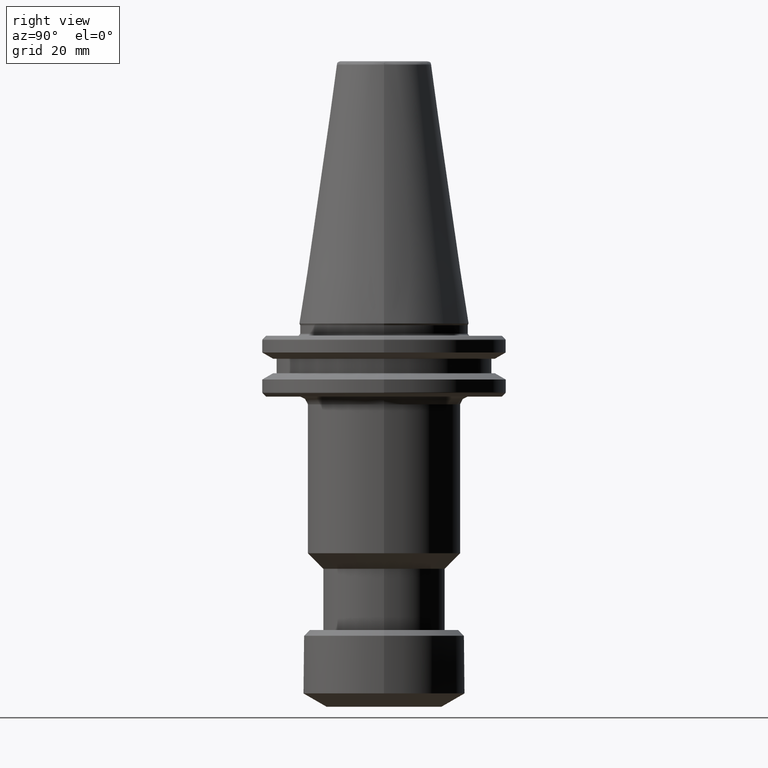
[diagram: clean part render]
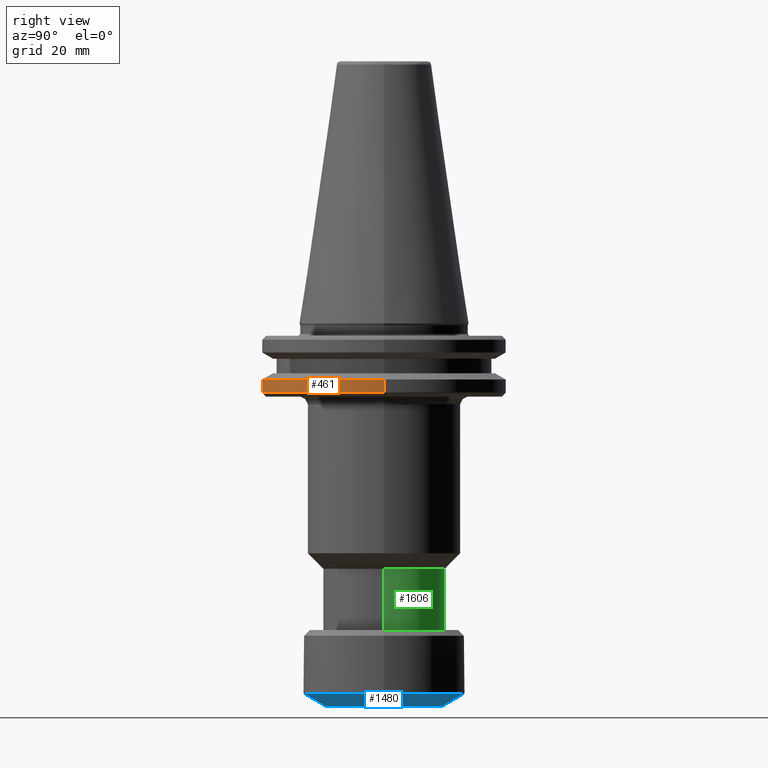
[diagram: same view with three faces highlighted in distinct colors, each labeled with its STEP entity id]
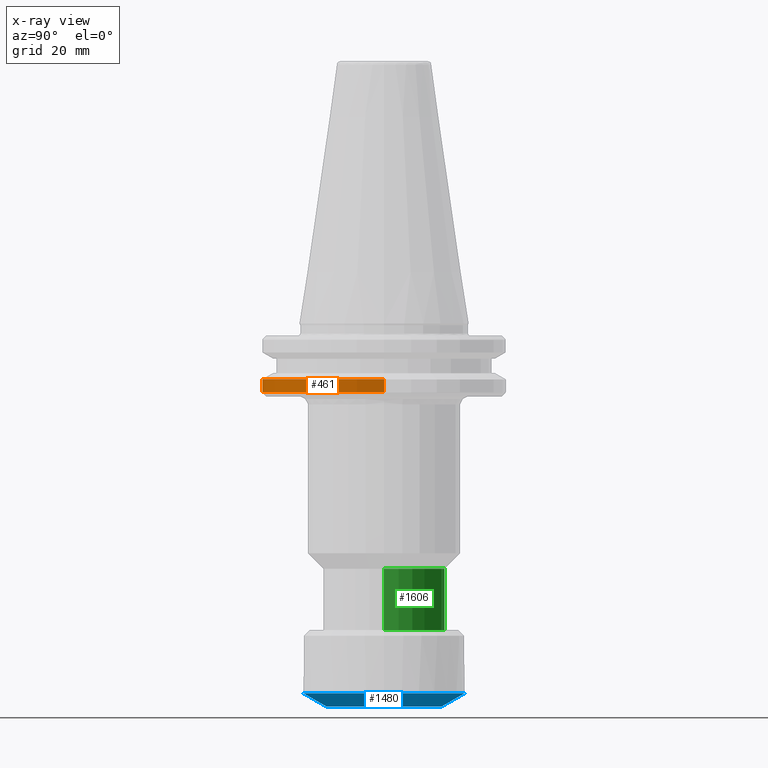
[diagram: x-ray of the same camera — body ghosted, the three highlighted faces saturated]
A machine part, right view with three faces highlighted in distinct colors.
The next image is the same camera in x-ray (body ghosted, the three faces saturated) — at least one of them is partly hidden behind the body in this view.
Their STEP definitions:

[orange] entity #461 — the highlighted conical surface has half-angle 0.001 deg.
#14 = VERTEX_POINT ( 'NONE', #438 ) ;
#16 = CIRCLE ( 'NONE', #235, 31.75222334815384800 ) ;
#55 = CIRCLE ( 'NONE', #1088, 31.75228813968557200 ) ;
#128 = VECTOR ( 'NONE', #274, 1000.000000000000000 ) ;
#214 = VERTEX_POINT ( 'NONE', #1546 ) ;
#235 = AXIS2_PLACEMENT_3D ( 'NONE', #1138, #382, #1272 ) ;
#256 = VERTEX_POINT ( 'NONE', #281 ) ;
#274 = DIRECTION ( 'NONE',  ( -1.955642939386508000E-005, 0.0000000000000000000, -0.9999999998087730800 ) ) ;
#275 = FACE_OUTER_BOUND ( 'NONE', #902, .T. ) ;
#281 = CARTESIAN_POINT ( 'NONE',  ( -31.75222334815384800, 0.0000000000000000000, -14.62063833440296900 ) ) ;
#338 = DIRECTION ( 'NONE',  ( 1.955642939386508000E-005, 2.394971865994808200E-021, -0.9999999998087730800 ) ) ;
#350 = VERTEX_POINT ( 'NONE', #878 ) ;
#382 = DIRECTION ( 'NONE',  ( -0.0000000000000000000, -0.0000000000000000000, 1.000000000000000000 ) ) ;
#438 = CARTESIAN_POINT ( 'NONE',  ( 31.75228813968557200, 3.888533803587039900E-015, -17.93369361693086700 ) ) ;
#461 = ADVANCED_FACE ( 'NONE', ( #275 ), #933, .T. ) ;
#474 = LINE ( 'NONE', #1403, #128 ) ;
#513 = DIRECTION ( 'NONE',  ( 1.000000000000000000, 0.0000000000000000000, 0.0000000000000000000 ) ) ;
#515 = EDGE_CURVE ( 'NONE', #214, #14, #978, .T. ) ;
#517 = ORIENTED_EDGE ( 'NONE', *, *, #769, .F. ) ;
#769 = EDGE_CURVE ( 'NONE', #256, #214, #16, .T. ) ;
#869 = CARTESIAN_POINT ( 'NONE',  ( 0.0000000000000000000, 0.0000000000000000000, -17.93369361693086700 ) ) ;
#878 = CARTESIAN_POINT ( 'NONE',  ( -31.75228813968557200, 0.0000000000000000000, -17.93369361693086700 ) ) ;
#902 = EDGE_LOOP ( 'NONE', ( #918, #517, #1588, #1069 ) ) ;
#918 = ORIENTED_EDGE ( 'NONE', *, *, #515, .F. ) ;
#933 = CONICAL_SURFACE ( 'NONE', #1238, 31.75222334815384800, 1.955642939511165100E-005 ) ;
#978 = LINE ( 'NONE', #1499, #1571 ) ;
#1069 = ORIENTED_EDGE ( 'NONE', *, *, #1282, .T. ) ;
#1088 = AXIS2_PLACEMENT_3D ( 'NONE', #869, #1617, #513 ) ;
#1114 = CARTESIAN_POINT ( 'NONE',  ( 0.0000000000000000000, 0.0000000000000000000, -14.62063833440296900 ) ) ;
#1138 = CARTESIAN_POINT ( 'NONE',  ( 0.0000000000000000000, 0.0000000000000000000, -14.62063833440296900 ) ) ;
#1238 = AXIS2_PLACEMENT_3D ( 'NONE', #1114, #1614, #1489 ) ;
#1272 = DIRECTION ( 'NONE',  ( 1.000000000000000000, 0.0000000000000000000, 0.0000000000000000000 ) ) ;
#1282 = EDGE_CURVE ( 'NONE', #350, #14, #55, .T. ) ;
#1403 = CARTESIAN_POINT ( 'NONE',  ( -31.75222334815384800, 0.0000000000000000000, -14.62063833440296900 ) ) ;
#1489 = DIRECTION ( 'NONE',  ( -1.000000000000000000, 0.0000000000000000000, 0.0000000000000000000 ) ) ;
#1499 = CARTESIAN_POINT ( 'NONE',  ( 31.75222334815384800, 3.888525868912846400E-015, -14.62063833440296900 ) ) ;
#1546 = CARTESIAN_POINT ( 'NONE',  ( 31.75222334815384800, 3.888525868912846400E-015, -14.62063833440296900 ) ) ;
#1571 = VECTOR ( 'NONE', #338, 1000.000000000000000 ) ;
#1588 = ORIENTED_EDGE ( 'NONE', *, *, #1652, .T. ) ;
#1614 = DIRECTION ( 'NONE',  ( 0.0000000000000000000, 0.0000000000000000000, -1.000000000000000000 ) ) ;
#1617 = DIRECTION ( 'NONE',  ( -0.0000000000000000000, -0.0000000000000000000, 1.000000000000000000 ) ) ;
#1652 = EDGE_CURVE ( 'NONE', #256, #350, #474, .T. ) ;

[blue] entity #1480 — the highlighted conical surface has half-angle 60 deg.
#33 = ORIENTED_EDGE ( 'NONE', *, *, #277, .F. ) ;
#41 = EDGE_LOOP ( 'NONE', ( #1071, #1461, #487, #33, #1655 ) ) ;
#66 = DIRECTION ( 'NONE',  ( 0.0000000000000000000, -1.000000000000000000, -6.608470384673550000E-016 ) ) ;
#79 = DIRECTION ( 'NONE',  ( 1.000000000000000000, 0.0000000000000000000, 0.0000000000000000000 ) ) ;
#99 = DIRECTION ( 'NONE',  ( 0.0000000000000000000, -1.000000000000000000, 0.0000000000000000000 ) ) ;
#125 = LINE ( 'NONE', #169, #797 ) ;
#137 = EDGE_CURVE ( 'NONE', #441, #716, #688, .T. ) ;
#140 = VECTOR ( 'NONE', #1646, 1000.000000000000100 ) ;
#169 = CARTESIAN_POINT ( 'NONE',  ( 0.0000000000000000000, -21.00000000000000400, -96.53589838500001000 ) ) ;
#277 = EDGE_CURVE ( 'NONE', #295, #441, #1126, .T. ) ;
#287 = AXIS2_PLACEMENT_3D ( 'NONE', #847, #971, #79 ) ;
#294 = CARTESIAN_POINT ( 'NONE',  ( 0.0000000000000000000, -21.00000000000005300, -96.53589838499998200 ) ) ;
#295 = VERTEX_POINT ( 'NONE', #294 ) ;
#373 = CARTESIAN_POINT ( 'NONE',  ( 2.571758278209442100E-015, 21.00000000000000400, -96.53589838499998200 ) ) ;
#441 = VERTEX_POINT ( 'NONE', #823 ) ;
#487 = ORIENTED_EDGE ( 'NONE', *, *, #137, .F. ) ;
#567 = DIRECTION ( 'NONE',  ( 1.000000000000000000, 0.0000000000000000000, 0.0000000000000000000 ) ) ;
#572 = CARTESIAN_POINT ( 'NONE',  ( 0.0000000000000000000, 0.0000000000000000000, -96.53589838499999600 ) ) ;
#573 = DIRECTION ( 'NONE',  ( 0.0000000000000000000, -0.8660254037930481500, 0.4999999999850878200 ) ) ;
#628 = CARTESIAN_POINT ( 'NONE',  ( 0.0000000000000000000, -14.99999999999986900, -100.0000000000000700 ) ) ;
#648 = EDGE_CURVE ( 'NONE', #1285, #951, #1113, .T. ) ;
#659 = AXIS2_PLACEMENT_3D ( 'NONE', #669, #1325, #567 ) ;
#661 = FACE_OUTER_BOUND ( 'NONE', #41, .T. ) ;
#669 = CARTESIAN_POINT ( 'NONE',  ( -2.292773743318137900E-030, 0.0000000000000000000, -96.53589838499998200 ) ) ;
#688 = CIRCLE ( 'NONE', #659, 21.00000000000000000 ) ;
#716 = VERTEX_POINT ( 'NONE', #1030 ) ;
#797 = VECTOR ( 'NONE', #573, 1000.000000000000200 ) ;
#800 = CARTESIAN_POINT ( 'NONE',  ( 2.204364238465227900E-015, 14.99999999999987200, -100.0000000000000700 ) ) ;
#823 = CARTESIAN_POINT ( 'NONE',  ( 21.00000000000000000, 0.0000000000000000000, -96.53589838499998200 ) ) ;
#847 = CARTESIAN_POINT ( 'NONE',  ( -2.292773743318137900E-030, 0.0000000000000000000, -96.53589838499998200 ) ) ;
#927 = CARTESIAN_POINT ( 'NONE',  ( 0.0000000000000000000, 1.144620646611392900E-015, -100.0000000000000700 ) ) ;
#951 = VERTEX_POINT ( 'NONE', #800 ) ;
#957 = EDGE_CURVE ( 'NONE', #1285, #295, #125, .T. ) ;
#960 = CONICAL_SURFACE ( 'NONE', #1659, 21.00000000000000400, 1.047197551213816500 ) ;
#971 = DIRECTION ( 'NONE',  ( -3.304235192336775500E-016, 0.0000000000000000000, 1.000000000000000000 ) ) ;
#999 = DIRECTION ( 'NONE',  ( 0.0000000000000000000, -3.304235192336775000E-016, 1.000000000000000000 ) ) ;
#1029 = AXIS2_PLACEMENT_3D ( 'NONE', #927, #999, #99 ) ;
#1030 = CARTESIAN_POINT ( 'NONE',  ( 2.571758278209442100E-015, 21.00000000000000400, -96.53589838499998200 ) ) ;
#1071 = ORIENTED_EDGE ( 'NONE', *, *, #648, .T. ) ;
#1113 = CIRCLE ( 'NONE', #1029, 14.99999999999987000 ) ;
#1126 = CIRCLE ( 'NONE', #287, 21.00000000000000000 ) ;
#1257 = EDGE_CURVE ( 'NONE', #951, #716, #1425, .T. ) ;
#1285 = VERTEX_POINT ( 'NONE', #628 ) ;
#1325 = DIRECTION ( 'NONE',  ( -3.304235192336775500E-016, 0.0000000000000000000, 1.000000000000000000 ) ) ;
#1425 = LINE ( 'NONE', #373, #140 ) ;
#1461 = ORIENTED_EDGE ( 'NONE', *, *, #1257, .T. ) ;
#1480 = ADVANCED_FACE ( 'NONE', ( #661 ), #960, .T. ) ;
#1619 = DIRECTION ( 'NONE',  ( 0.0000000000000000000, -3.304235192336775000E-016, 1.000000000000000000 ) ) ;
#1646 = DIRECTION ( 'NONE',  ( 1.060575238735450300E-016, 0.8660254037930479300, 0.4999999999850883200 ) ) ;
#1655 = ORIENTED_EDGE ( 'NONE', *, *, #957, .F. ) ;
#1659 = AXIS2_PLACEMENT_3D ( 'NONE', #572, #1619, #66 ) ;

[green] entity #1606 — the highlighted cylindrical surface (partial cylindrical patch) has radius 15.95 mm, axis along (-0, 0, 1).
#4 = DIRECTION ( 'NONE',  ( -4.350403701509233400E-016, 0.0000000000000000000, 1.000000000000000000 ) ) ;
#67 = DIRECTION ( 'NONE',  ( 1.000000000000000000, 0.0000000000000000000, 0.0000000000000000000 ) ) ;
#78 = CIRCLE ( 'NONE', #462, 15.95000000000000300 ) ;
#95 = DIRECTION ( 'NONE',  ( -4.350403701509233400E-016, 0.0000000000000000000, 1.000000000000000000 ) ) ;
#194 = DIRECTION ( 'NONE',  ( 0.0000000000000000000, 0.0000000000000000000, 1.000000000000000000 ) ) ;
#220 = CARTESIAN_POINT ( 'NONE',  ( 15.95000000000000300, 0.0000000000000000000, -64.00000000000000000 ) ) ;
#259 = VERTEX_POINT ( 'NONE', #1170 ) ;
#392 = CIRCLE ( 'NONE', #547, 15.95000000000000300 ) ;
#462 = AXIS2_PLACEMENT_3D ( 'NONE', #1061, #1496, #67 ) ;
#471 = CARTESIAN_POINT ( 'NONE',  ( 15.95000000000000300, 0.0000000000000000000, -79.99999999999998600 ) ) ;
#547 = AXIS2_PLACEMENT_3D ( 'NONE', #976, #194, #945 ) ;
#551 = CYLINDRICAL_SURFACE ( 'NONE', #1199, 15.95000000000000300 ) ;
#674 = ORIENTED_EDGE ( 'NONE', *, *, #1273, .T. ) ;
#684 = EDGE_LOOP ( 'NONE', ( #1518, #674, #1331, #1152 ) ) ;
#784 = LINE ( 'NONE', #1392, #1390 ) ;
#892 = FACE_OUTER_BOUND ( 'NONE', #684, .T. ) ;
#900 = DIRECTION ( 'NONE',  ( 1.000000000000000000, 0.0000000000000000000, 8.700807403018466700E-016 ) ) ;
#945 = DIRECTION ( 'NONE',  ( 1.000000000000000000, 0.0000000000000000000, 0.0000000000000000000 ) ) ;
#955 = CARTESIAN_POINT ( 'NONE',  ( 15.95000000000000300, 0.0000000000000000000, -79.99999999999998600 ) ) ;
#976 = CARTESIAN_POINT ( 'NONE',  ( 0.0000000000000000000, 0.0000000000000000000, -64.00000000000000000 ) ) ;
#993 = CARTESIAN_POINT ( 'NONE',  ( -15.95000000000000300, 1.953311644640028500E-015, -79.99999999999998600 ) ) ;
#1033 = EDGE_CURVE ( 'NONE', #1066, #1295, #78, .T. ) ;
#1061 = CARTESIAN_POINT ( 'NONE',  ( -3.018698972393786200E-030, 0.0000000000000000000, -79.99999999999998600 ) ) ;
#1062 = EDGE_CURVE ( 'NONE', #1529, #259, #392, .T. ) ;
#1066 = VERTEX_POINT ( 'NONE', #955 ) ;
#1079 = VECTOR ( 'NONE', #1245, 1000.000000000000000 ) ;
#1152 = ORIENTED_EDGE ( 'NONE', *, *, #1439, .F. ) ;
#1170 = CARTESIAN_POINT ( 'NONE',  ( -15.95000000000000300, 1.953311644640028500E-015, -64.00000000000000000 ) ) ;
#1199 = AXIS2_PLACEMENT_3D ( 'NONE', #1528, #4, #900 ) ;
#1245 = DIRECTION ( 'NONE',  ( -4.350403701509233400E-016, 0.0000000000000000000, 1.000000000000000000 ) ) ;
#1273 = EDGE_CURVE ( 'NONE', #1295, #259, #784, .T. ) ;
#1295 = VERTEX_POINT ( 'NONE', #993 ) ;
#1331 = ORIENTED_EDGE ( 'NONE', *, *, #1062, .F. ) ;
#1390 = VECTOR ( 'NONE', #95, 1000.000000000000000 ) ;
#1392 = CARTESIAN_POINT ( 'NONE',  ( -15.95000000000000300, 1.953311644640028500E-015, -80.00000000000001400 ) ) ;
#1439 = EDGE_CURVE ( 'NONE', #1066, #1529, #1505, .T. ) ;
#1496 = DIRECTION ( 'NONE',  ( -4.350403701509233400E-016, 0.0000000000000000000, 1.000000000000000000 ) ) ;
#1505 = LINE ( 'NONE', #471, #1079 ) ;
#1518 = ORIENTED_EDGE ( 'NONE', *, *, #1033, .T. ) ;
#1528 = CARTESIAN_POINT ( 'NONE',  ( 0.0000000000000000000, 0.0000000000000000000, -80.00000000000000000 ) ) ;
#1529 = VERTEX_POINT ( 'NONE', #220 ) ;
#1606 = ADVANCED_FACE ( 'NONE', ( #892 ), #551, .T. ) ;